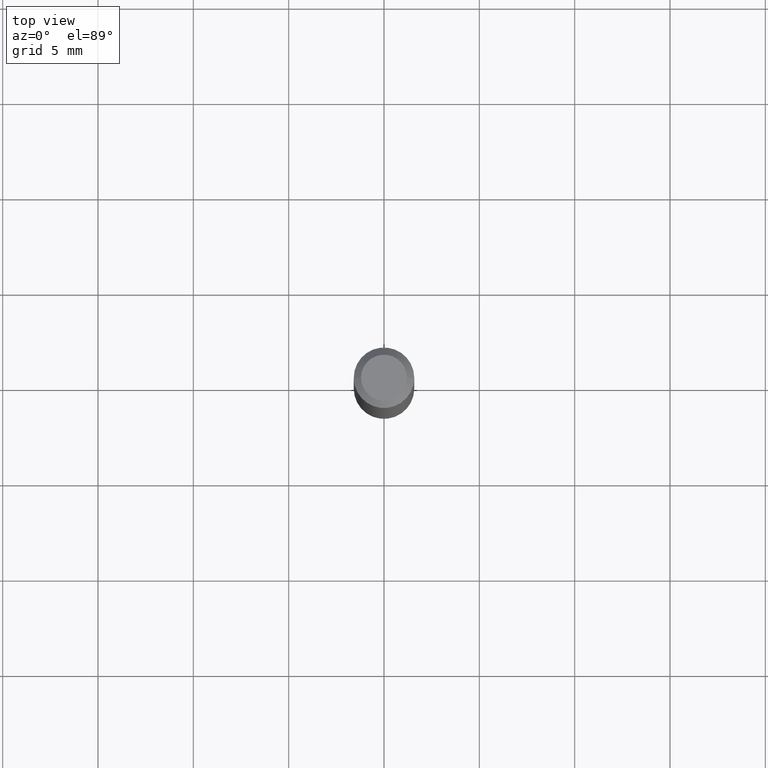
[diagram: clean part render]
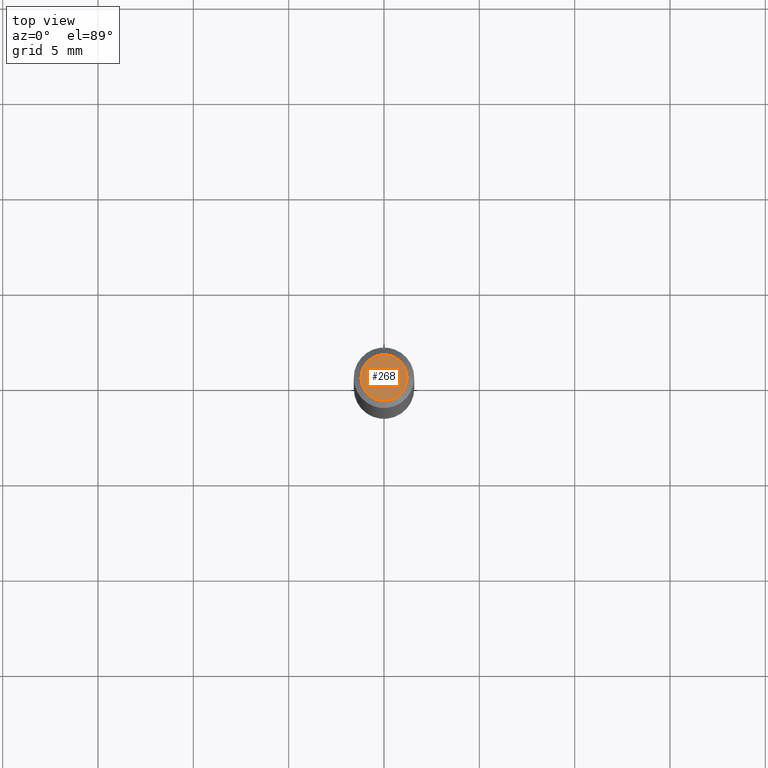
[diagram: same view with one face highlighted and labeled with its STEP entity id]
A machine part, top view. The second image highlights one B-rep face of the part: STEP entity #268.
In plain terms, the highlighted planar face has unit normal (0, -0, -1).
Its self-contained STEP definition (entity closure, byte-faithful):
#1 = DIRECTION ( 'NONE',  ( -2.445468806185136597E-29, 3.491481338843145583E-15, 1.000000000000000000 ) ) ;
#16 = DIRECTION ( 'NONE',  ( -2.445468806185136597E-29, 3.491481338843145583E-15, 1.000000000000000000 ) ) ;
#18 = CARTESIAN_POINT ( 'NONE',  ( 3.316907271900976096E-16, 0.04749999999999999362, -2.653275547260257586E-16 ) ) ;
#46 = DIRECTION ( 'NONE',  ( 2.438088387897960049E-29, -3.491481338843145188E-15, -1.000000000000000000 ) ) ;
#59 = CARTESIAN_POINT ( 'NONE',  ( -0.04749999999999999362, 3.578768372314206562E-16, -1.989643822619551895E-16 ) ) ;
#79 = PLANE ( 'NONE',  #335 ) ;
#92 = ORIENTED_EDGE ( 'NONE', *, *, #188, .T. ) ;
#123 = VERTEX_POINT ( 'NONE', #279 ) ;
#126 = EDGE_LOOP ( 'NONE', ( #374, #92 ) ) ;
#154 = AXIS2_PLACEMENT_3D ( 'NONE', #201, #16, #169 ) ;
#168 = CIRCLE ( 'NONE', #154, 0.04749999999999999362 ) ;
#169 = DIRECTION ( 'NONE',  ( 1.000000000000000000, -6.982962677686267499E-15, 4.852736867747366768E-29 ) ) ;
#184 = DIRECTION ( 'NONE',  ( 1.000000000000000000, -6.982962677686267499E-15, 4.852736867747366768E-29 ) ) ;
#188 = EDGE_CURVE ( 'NONE', #123, #431, #412, .T. ) ;
#201 = CARTESIAN_POINT ( 'NONE',  ( 4.865611903635008365E-45, -6.946804277620623666E-31, -1.989643822619527736E-16 ) ) ;
#268 = ADVANCED_FACE ( 'NONE', ( #404 ), #79, .F. ) ;
#279 = CARTESIAN_POINT ( 'NONE',  ( 0.04749999999999999362, -4.035134999187581581E-16, -1.989643822619502098E-16 ) ) ;
#281 = DIRECTION ( 'NONE',  ( -1.000000000000000000, 6.982962677686265922E-15, -4.876176775795935793E-29 ) ) ;
#331 = EDGE_CURVE ( 'NONE', #431, #123, #168, .T. ) ;
#335 = AXIS2_PLACEMENT_3D ( 'NONE', #18, #46, #281 ) ;
#352 = CARTESIAN_POINT ( 'NONE',  ( 4.865611903635008365E-45, -6.946804277620623666E-31, -1.989643822619527736E-16 ) ) ;
#358 = AXIS2_PLACEMENT_3D ( 'NONE', #352, #1, #184 ) ;
#374 = ORIENTED_EDGE ( 'NONE', *, *, #331, .T. ) ;
#404 = FACE_OUTER_BOUND ( 'NONE', #126, .T. ) ;
#412 = CIRCLE ( 'NONE', #358, 0.04749999999999999362 ) ;
#431 = VERTEX_POINT ( 'NONE', #59 ) ;